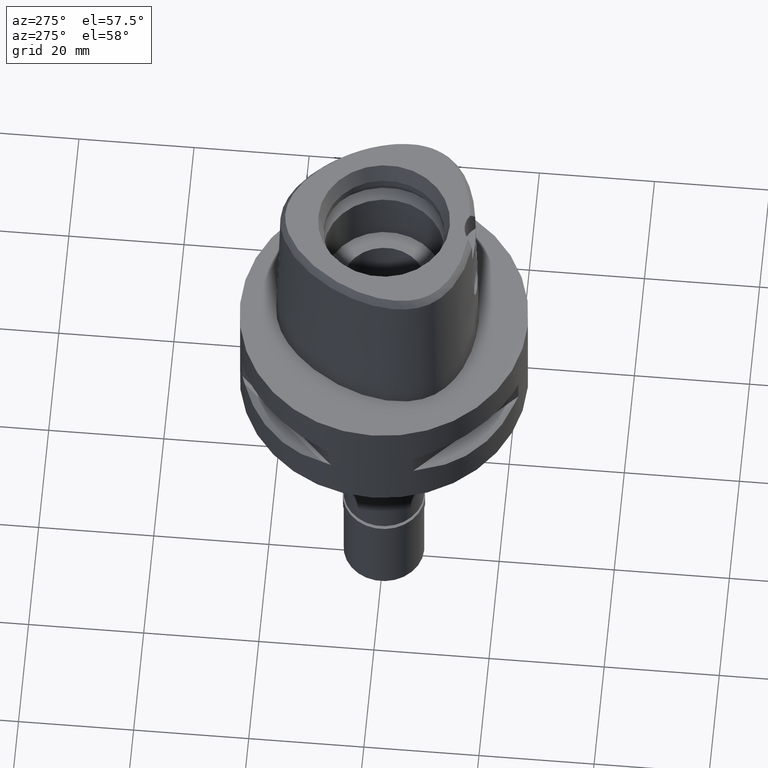
[diagram: clean part render]
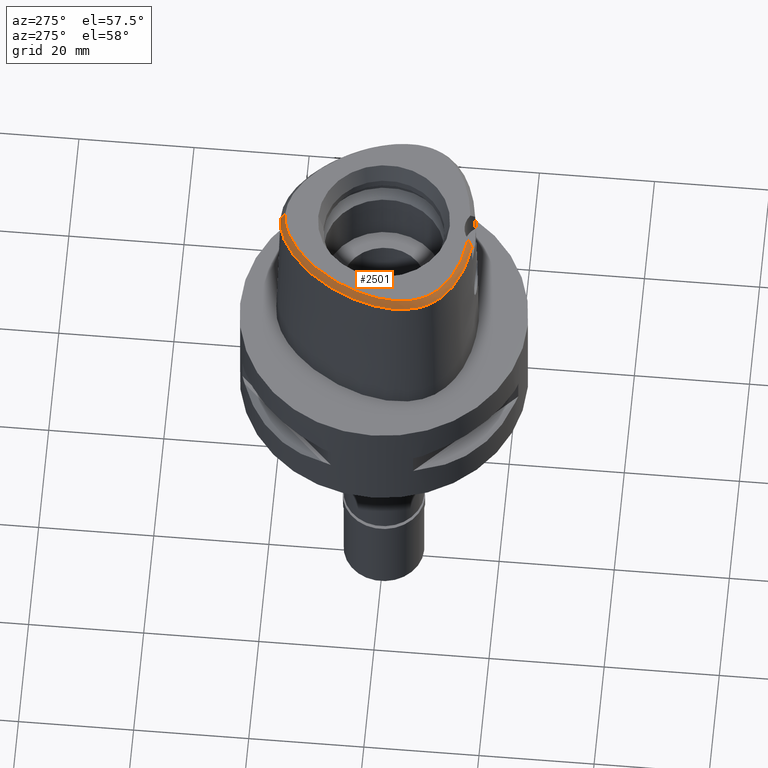
[diagram: same view with one face highlighted and labeled with its STEP entity id]
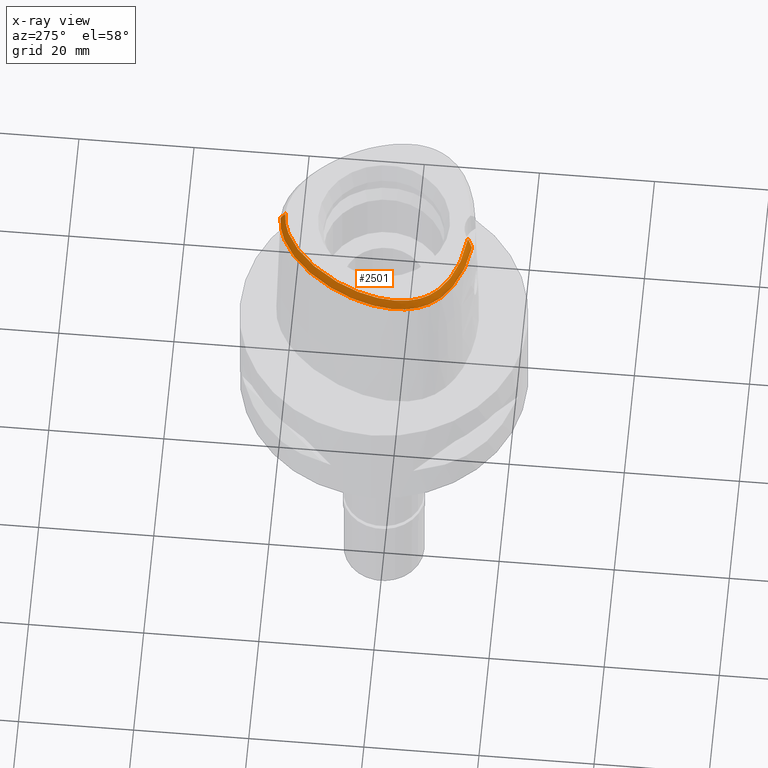
[diagram: x-ray of the same camera — body ghosted, the highlighted face saturated]
A machine part, auxiliary view. The second image highlights one B-rep face of the part: STEP entity #2501.
The next image is the same camera in x-ray: the body ghosted, the highlighted face saturated — about 0% of this face is hidden behind the body in this view.
In plain terms, the highlighted face is a freeform B-spline surface patch.
Its self-contained STEP definition (entity closure, byte-faithful):
#56 = CARTESIAN_POINT ( 'NONE',  ( -2.079945517364000018, -14.76025609020000040, 30.12933893417999798 ) ) ;
#62 = CARTESIAN_POINT ( 'NONE',  ( -6.187456709968000013, 15.30378517703000085, 29.54999834022000371 ) ) ;
#64 = CARTESIAN_POINT ( 'NONE',  ( -12.04571048960038659, -11.59259605427430273, 30.00000000000306954 ) ) ;
#80 = CARTESIAN_POINT ( 'NONE',  ( -8.062879144460998404, -14.57173909518000166, 28.39131700825999971 ) ) ;
#86 = CARTESIAN_POINT ( 'NONE',  ( 0.4952307376230999925, 17.71677170343000185, 28.97065533124999703 ) ) ;
#107 = CARTESIAN_POINT ( 'NONE',  ( -3.191080627774999900, -15.30841913480000116, 28.97065593673999828 ) ) ;
#110 = CARTESIAN_POINT ( 'NONE',  ( -0.04067233802848999741, 17.08601230993000186, 30.12933898580000047 ) ) ;
#123 = CARTESIAN_POINT ( 'NONE',  ( -11.92713521269492283, 9.060544494662932991, 29.99999999999736744 ) ) ;
#135 = CARTESIAN_POINT ( 'NONE',  ( -4.126571935020999504, 17.16469561551999945, 28.39131473941999673 ) ) ;
#147 = CARTESIAN_POINT ( 'NONE',  ( -8.556928701964659822, 13.07433695898526693, 30.00000000000046185 ) ) ;
#159 = CARTESIAN_POINT ( 'NONE',  ( -16.61469463490999843, -1.596364904514999905, 28.97065518721999666 ) ) ;
#161 = CARTESIAN_POINT ( 'NONE',  ( -13.66338899148929187, -10.18351204678886290, 29.99999999999923617 ) ) ;
#183 = CARTESIAN_POINT ( 'NONE',  ( -16.36483838342999775, -2.618501849201000375, 29.54999726452999909 ) ) ;
#184 = CARTESIAN_POINT ( 'NONE',  ( -14.26907056455178591, -10.79012254419424899, 28.52071192347005280 ) ) ;
#207 = CARTESIAN_POINT ( 'NONE',  ( -16.05293619772000113, -3.534758618674999742, 30.12933898812000066 ) ) ;
#236 = CARTESIAN_POINT ( 'NONE',  ( -9.178924021223000551, 13.72716690328000055, 28.39131637512999973 ) ) ;
#237 = CARTESIAN_POINT ( 'NONE',  ( -7.523733151595282997, 15.26501052509523326, 28.52071192347005280 ) ) ;
#254 = CARTESIAN_POINT ( 'NONE',  ( -15.95265548748000128, 1.811410582244999956, 28.97065776782000057 ) ) ;
#255 = CARTESIAN_POINT ( 'NONE',  ( -13.06460239552742308, -11.91950051571652125, 28.52071192347005280 ) ) ;
#272 = VERTEX_POINT ( 'NONE', #2993 ) ;
#281 = CARTESIAN_POINT ( 'NONE',  ( -15.26566713823000043, -8.365641472955001490, 29.54999717351999777 ) ) ;
#282 = CARTESIAN_POINT ( 'NONE',  ( -13.75951393052746496, 7.944084103042573730, 28.52071192347005280 ) ) ;
#283 = DIRECTION ( 'NONE',  ( -2.026170529251034668E-11, -0.4887572537803078765, 0.8724198226067148010 ) ) ;
#312 = CARTESIAN_POINT ( 'NONE',  ( -16.98463338979999904, -4.446094558498999483, 28.39131479093999744 ) ) ;
#334 = CARTESIAN_POINT ( 'NONE',  ( -16.70239734405999954, -3.544778011541000140, 28.97065569047000011 ) ) ;
#353 = CARTESIAN_POINT ( 'NONE',  ( -13.80437769679000048, -11.31670849274000012, 28.39131366040000160 ) ) ;
#372 = VERTEX_POINT ( 'NONE', #3068 ) ;
#382 = CARTESIAN_POINT ( 'NONE',  ( -15.25597616872000017, -9.045164448268000257, 28.97065561519999832 ) ) ;
#408 = CARTESIAN_POINT ( 'NONE',  ( -7.014883569763000537, 14.71655303849999896, 29.54999710032999971 ) ) ;
#409 = CARTESIAN_POINT ( 'NONE',  ( -2.406542353497000075, -14.80491723099000012, 30.00000000000000000 ) ) ;
#427 = CARTESIAN_POINT ( 'NONE',  ( -9.719401339842001164, -12.86245692373999816, 30.12933902817000131 ) ) ;
#463 = CARTESIAN_POINT ( 'NONE',  ( 0.3144436683223000295, 17.40110467407000172, 29.54999727835999934 ) ) ;
#466 = CARTESIAN_POINT ( 'NONE',  ( -10.60021164902527957, -12.49731984708702370, 29.99999999999084821 ) ) ;
#476 = CARTESIAN_POINT ( 'NONE',  ( -10.27907733181908512, 11.24278573582384944, 29.99999999999005595 ) ) ;
#483 = CARTESIAN_POINT ( 'NONE',  ( -2.456142536420000244, -15.70658392389999847, 28.39131470322999817 ) ) ;
#488 = CARTESIAN_POINT ( 'NONE',  ( -1.285080983495000106, 17.97187024245999964, 28.39131352361000182 ) ) ;
#507 = EDGE_CURVE ( 'NONE', #3712, #532, #598, .T. ) ;
#509 = CARTESIAN_POINT ( 'NONE',  ( -0.5855389863231000858, 17.39182595605999992, 29.54999721224000098 ) ) ;
#523 = CARTESIAN_POINT ( 'NONE',  ( -0.5679008307149101542, 17.14013367087451556, 29.99999999999934985 ) ) ;
#532 = VERTEX_POINT ( 'NONE', #2055 ) ;
#537 = CARTESIAN_POINT ( 'NONE',  ( -15.96872935117999859, -1.664054894316999933, 30.12933905135000145 ) ) ;
#561 = CARTESIAN_POINT ( 'NONE',  ( -8.954922691473001350, 13.49206099316000085, 28.97065718359000286 ) ) ;
#564 = CARTESIAN_POINT ( 'NONE',  ( -15.87300767660384793, -5.872112237378931177, 30.00000000000066436 ) ) ;
#565 = LINE ( 'NONE', #1689, #4586 ) ;
#583 = CARTESIAN_POINT ( 'NONE',  ( -15.25970517872000087, 2.948599182799999774, 29.54999727463000170 ) ) ;
#598 = B_SPLINE_CURVE_WITH_KNOTS ( 'NONE', 3,
 ( #1280, #2101, #3198, #2499, #1713, #255, #184, #1340, #4742, #2402, #1388, #943, #1787, #2796, #4327, #282, #3593, #237, #989, #1742, #4378, #2843 ),
 .UNSPECIFIED., .F., .F.,
 ( 4, 1, 1, 1, 1, 1, 1, 1, 1, 1, 1, 1, 1, 1, 1, 1, 1, 1, 1, 4 ),
 ( 0.0000000000000000000, 0.03108635432775441743, 0.1191694130250679773, 0.1632109423736190223, 0.2072524717223813984, 0.2512940010710381644, 0.2733147657453666168, 0.2953355304195892095, 0.3173562950940232996, 0.3393770597682460033, 0.3834185891170084903, 0.4274601184655595354, 0.4715016478142163292, 0.5595847065115299168, 0.6476677652088432824, 0.7357508239061568700, 0.8238338826033646534, 0.9119169413007310876, 0.9559584706493772233, 1.000000000000000000 ),
 .UNSPECIFIED. ) ;
#608 = CARTESIAN_POINT ( 'NONE',  ( -13.45929895405000032, 8.334032602907999632, 28.39131381031000245 ) ) ;
#631 = CARTESIAN_POINT ( 'NONE',  ( -15.64007475516999968, 1.723421431546000138, 29.54999824745999959 ) ) ;
#654 = CARTESIAN_POINT ( 'NONE',  ( -16.75586695602000020, -6.056368517675000618, 28.39131360599999709 ) ) ;
#676 = CARTESIAN_POINT ( 'NONE',  ( -16.33702360534000064, -4.395839951402000345, 29.54999754889999863 ) ) ;
#701 = CARTESIAN_POINT ( 'NONE',  ( -10.56558581236000016, -12.43361854549000078, 30.12933901367000189 ) ) ;
#721 = CARTESIAN_POINT ( 'NONE',  ( -16.24927158191999865, -5.189260749316000343, 29.54999729442999978 ) ) ;
#743 = CARTESIAN_POINT ( 'NONE',  ( -13.36125658655000059, -10.84170792763000080, 29.54999723265000000 ) ) ;
#792 = CARTESIAN_POINT ( 'NONE',  ( -7.856780787036998781, -13.95583240576000073, 29.54999816915999844 ) ) ;
#797 = CARTESIAN_POINT ( 'NONE',  ( -1.150107070882000038, 17.00680459434000014, 30.12933902977000145 ) ) ;
#799 = CARTESIAN_POINT ( 'NONE',  ( -9.750168658358797202, -12.92810664733774395, 29.99999999999974065 ) ) ;
#818 = CARTESIAN_POINT ( 'NONE',  ( -0.6309543540634999781, 18.03989245089999827, 28.39131358746000089 ) ) ;
#844 = CARTESIAN_POINT ( 'NONE',  ( -6.716817607405000778, -14.30321382752000048, 29.54999836600000052 ) ) ;
#850 = CARTESIAN_POINT ( 'NONE',  ( 0.3264291513700999792, 17.72550193113999839, 28.97065555109000101 ) ) ;
#861 = CARTESIAN_POINT ( 'NONE',  ( -6.301949014319000032E-11, 17.15328888647999861, 30.00000000000000000 ) ) ;
#867 = CARTESIAN_POINT ( 'NONE',  ( -9.023949897772000739, -13.87263361849000098, 28.97065554743000249 ) ) ;
#871 = CARTESIAN_POINT ( 'NONE',  ( -6.548153273811999853, 15.84393808220000288, 28.39131761979000146 ) ) ;
#890 = CARTESIAN_POINT ( 'NONE',  ( -14.95238416923000102, 2.843721163697999543, 30.12933900671000131 ) ) ;
#902 = CARTESIAN_POINT ( 'NONE',  ( -6.862723739079807928, 14.51536572208420672, 30.00000000000309441 ) ) ;
#915 = CARTESIAN_POINT ( 'NONE',  ( -15.83068895642000129, -0.6279681332369000391, 30.12933892226999788 ) ) ;
#918 = CARTESIAN_POINT ( 'NONE',  ( -16.12543283909113256, -3.535877041748430649, 29.99999999999853983 ) ) ;
#942 = CARTESIAN_POINT ( 'NONE',  ( -13.60712712011000036, 6.754059460247000324, 29.54999737409000105 ) ) ;
#943 = CARTESIAN_POINT ( 'NONE',  ( -16.85489160761262184, -5.354527567564943524, 28.52071192347005280 ) ) ;
#965 = CARTESIAN_POINT ( 'NONE',  ( -12.90266119977999892, 7.999495185384000173, 29.54999727458000081 ) ) ;
#966 = B_SPLINE_CURVE_WITH_KNOTS ( 'NONE', 3,
 ( #409, #2281, #1905, #4529 ),
 .UNSPECIFIED., .F., .F.,
 ( 4, 4 ),
 ( 0.0000000000000000000, 1.000000000000000000 ),
 .UNSPECIFIED. ) ;
#988 = CARTESIAN_POINT ( 'NONE',  ( -11.06115077830000004, 10.14747851883999985, 30.12933894825999914 ) ) ;
#989 = CARTESIAN_POINT ( 'NONE',  ( -4.422474562381206731, 17.08283562090321084, 28.52071192347005280 ) ) ;
#1016 = CARTESIAN_POINT ( 'NONE',  ( -14.97706988702999986, -8.216552483196000622, 30.12933903577000194 ) ) ;
#1038 = CARTESIAN_POINT ( 'NONE',  ( -15.92770133631999840, -5.143653076787000344, 30.12933900101999996 ) ) ;
#1060 = CARTESIAN_POINT ( 'NONE',  ( -14.91678025573999911, -9.560674617730001046, 28.97065546127999980 ) ) ;
#1085 = CARTESIAN_POINT ( 'NONE',  ( -16.66082849757000162, -4.420967254950999958, 28.97065616991999804 ) ) ;
#1106 = CARTESIAN_POINT ( 'NONE',  ( -16.89241207314000093, -5.280476094373000251, 28.39131388124000210 ) ) ;
#1164 = CARTESIAN_POINT ( 'NONE',  ( -1.958285495965999656, 17.85462106361000068, 28.39131412561999923 ) ) ;
#1198 = CARTESIAN_POINT ( 'NONE',  ( -1.772880577021968218, 16.97196055715992102, 29.99999999999775824 ) ) ;
#1203 = CARTESIAN_POINT ( 'NONE',  ( -2.369477536655999916, -14.73670693372999985, 30.12933893493000070 ) ) ;
#1207 = CARTESIAN_POINT ( 'NONE',  ( -5.712711774408999688, 16.36517673435999853, 28.39132014003999771 ) ) ;
#1218 = EDGE_CURVE ( 'NONE', #532, #372, #565, .T. ) ;
#1220 = CARTESIAN_POINT ( 'NONE',  ( -6.047371482395221598, 15.09400374235290343, 30.00000000000095213 ) ) ;
#1229 = CARTESIAN_POINT ( 'NONE',  ( -6.888235422691000309, -14.92964498533000040, 28.39131771194000109 ) ) ;
#1234 = CARTESIAN_POINT ( 'NONE',  ( -3.053017631463999848, 16.53734507408000098, 30.12933908849000275 ) ) ;
#1257 = CARTESIAN_POINT ( 'NONE',  ( -1.757973948115000073, 16.90099430289000182, 30.12933898137000099 ) ) ;
#1267 = CARTESIAN_POINT ( 'NONE',  ( -14.55898035934198909, 4.112421202110860818, 29.99999999999583622 ) ) ;
#1279 = CARTESIAN_POINT ( 'NONE',  ( -8.506920031974001262, 13.02184917293000055, 30.12933880050999846 ) ) ;
#1280 = CARTESIAN_POINT ( 'NONE',  ( -3.168920966622999824, -15.55911077538999976, 28.52071192346999950 ) ) ;
#1282 = CARTESIAN_POINT ( 'NONE',  ( -14.44611813752641893, -9.226676124712433591, 29.99999999998939160 ) ) ;
#1311 = CARTESIAN_POINT ( 'NONE',  ( -17.01369348652999847, -2.589134407911000135, 28.39131377437000125 ) ) ;
#1339 = CARTESIAN_POINT ( 'NONE',  ( -15.56702618821999984, 3.053477201902999649, 28.97065554255000208 ) ) ;
#1340 = CARTESIAN_POINT ( 'NONE',  ( -15.07117015427603413, -9.793013966486137534, 28.52071192347005280 ) ) ;
#1362 = CARTESIAN_POINT ( 'NONE',  ( -11.83856738222999816, 10.73450735840000014, 28.39131453743000222 ) ) ;
#1387 = CARTESIAN_POINT ( 'NONE',  ( -15.18168109123999976, -9.748657623861999966, 28.39131368345999817 ) ) ;
#1388 = CARTESIAN_POINT ( 'NONE',  ( -16.47905549557314941, -6.962316292880237789, 28.52071192347005280 ) ) ;
#1396 = CARTESIAN_POINT ( 'NONE',  ( -3.168920966622999824, -15.55911077538999976, 28.52071192346999950 ) ) ;
#1413 = ORIENTED_EDGE ( 'NONE', *, *, #4248, .F. ) ;
#1414 = CARTESIAN_POINT ( 'NONE',  ( -11.49729768999999990, -12.26449584118000047, 29.54999744338000056 ) ) ;
#1437 = CARTESIAN_POINT ( 'NONE',  ( -15.55426438942000011, -8.514730462713000492, 28.97065531125999982 ) ) ;
#1461 = CARTESIAN_POINT ( 'NONE',  ( -12.38169571309000005, -12.06175123913999947, 28.97065605088000240 ) ) ;
#1489 = CARTESIAN_POINT ( 'NONE',  ( -16.43791978432000178, -5.990011664941000014, 28.97065541171999925 ) ) ;
#1517 = ORIENTED_EDGE ( 'NONE', *, *, #507, .F. ) ;
#1538 = CARTESIAN_POINT ( 'NONE',  ( -9.857215848043999529, -13.15651844120000113, 29.54999719995999641 ) ) ;
#1544 = CARTESIAN_POINT ( 'NONE',  ( -7.210776916382999779, 14.97556526619000117, 28.97065514384999929 ) ) ;
#1565 = CARTESIAN_POINT ( 'NONE',  ( -2.155902453569999988, -15.73100360134000297, 28.39131471255999983 ) ) ;
#1570 = CARTESIAN_POINT ( 'NONE',  ( -6.367804991889999933, 15.57386162961000053, 28.97065798000999592 ) ) ;
#1572 = CARTESIAN_POINT ( 'NONE',  ( -12.65209017756193965, -11.12734424253546450, 29.99999999999976552 ) ) ;
#1581 = CARTESIAN_POINT ( 'NONE',  ( -13.38439869301878282, 6.635703175839537948, 29.99999999999813127 ) ) ;
#1586 = CARTESIAN_POINT ( 'NONE',  ( -9.995030356246999759, -13.45057995865999878, 28.97065537175999950 ) ) ;
#1589 = CARTESIAN_POINT ( 'NONE',  ( -0.6082466701933000319, 17.71585920348000087, 28.97065539984999916 ) ) ;
#1602 = CARTESIAN_POINT ( 'NONE',  ( -15.02099409651022555, 2.867135356160181114, 30.00000000000077094 ) ) ;
#1608 = CARTESIAN_POINT ( 'NONE',  ( -6.631108699762000569, -13.98999824861000008, 30.12933869303000023 ) ) ;
#1612 = CARTESIAN_POINT ( 'NONE',  ( -3.161237996535999795, 16.84358064135999911, 29.54999699010000214 ) ) ;
#1643 = CARTESIAN_POINT ( 'NONE',  ( -4.904769012775999748, 16.80335057319999947, 28.39131887845999813 ) ) ;
#1654 = CARTESIAN_POINT ( 'NONE',  ( -4.498660734198344002, 15.99814720005820767, 29.99999999999869971 ) ) ;
#1665 = CARTESIAN_POINT ( 'NONE',  ( -11.32028964627000001, 10.34315479868999965, 29.54999747797999987 ) ) ;
#1667 = CARTESIAN_POINT ( 'NONE',  ( -15.29229544369668758, -7.721097396977326888, 29.99999999998976108 ) ) ;
#1686 = CARTESIAN_POINT ( 'NONE',  ( -8.285007993609001531, 14.53089917325999991, 28.39131434379000041 ) ) ;
#1689 = CARTESIAN_POINT ( 'NONE',  ( -2.866356467587000151E-11, 17.98202997909999823, 28.52071728569000086 ) ) ;
#1712 = CARTESIAN_POINT ( 'NONE',  ( -9.604637704253999431, 12.37852618135000071, 29.54999777164999841 ) ) ;
#1713 = CARTESIAN_POINT ( 'NONE',  ( -11.33338053121734568, -13.08225253590195436, 28.52071192347005280 ) ) ;
#1741 = CARTESIAN_POINT ( 'NONE',  ( -14.79296600360999925, 4.206593906266999916, 29.54999722228000181 ) ) ;
#1742 = CARTESIAN_POINT ( 'NONE',  ( -1.893775706186628049, 17.84807082154121716, 28.52071192347005280 ) ) ;
#1758 = CARTESIAN_POINT ( 'NONE',  ( -10.22364143160999994, 11.19607002638000104, 30.12933904878000391 ) ) ;
#1786 = CARTESIAN_POINT ( 'NONE',  ( -13.58281714166999876, -11.07920821018000090, 28.97065544651999858 ) ) ;
#1787 = CARTESIAN_POINT ( 'NONE',  ( -16.99625270562911084, -3.273868231552331753, 28.52071192347005280 ) ) ;
#1813 = CARTESIAN_POINT ( 'NONE',  ( -15.95367651219000216, -6.604056725841999764, 29.54999724595000288 ) ) ;
#1834 = CARTESIAN_POINT ( 'NONE',  ( -15.53331124212999903, -9.214287122240000016, 28.39131392400999943 ) ) ;
#1853 = CARTESIAN_POINT ( 'NONE',  ( -16.57942697131000287, -6.778509396191999770, 28.39131370796999931 ) ) ;
#1879 = CARTESIAN_POINT ( 'NONE',  ( -14.77852702184000044, -10.27808571997000087, 28.39131431807000183 ) ) ;
#1901 = CARTESIAN_POINT ( 'NONE',  ( -9.144374591708000821, -14.17422531543000019, 28.39131381810000221 ) ) ;
#1904 = CARTESIAN_POINT ( 'NONE',  ( -5.385105150339999369, 15.80431596828000096, 29.54999904522000165 ) ) ;
#1905 = CARTESIAN_POINT ( 'NONE',  ( -2.935844350031931338, -15.25651563099012442, 29.10537812850959227 ) ) ;
#1921 = CARTESIAN_POINT ( 'NONE',  ( -3.114756859821999679, -14.66365231386000190, 30.12933895717999988 ) ) ;
#1926 = CARTESIAN_POINT ( 'NONE',  ( 0.4594406443951999930, 17.06865887657000158, 30.12933903325000173 ) ) ;
#1942 = CARTESIAN_POINT ( 'NONE',  ( -14.01158736113475989, 5.375902008631216589, 29.99999999999225508 ) ) ;
#1957 = CARTESIAN_POINT ( 'NONE',  ( -2.479902146202999980, 17.05879781480000190, 29.54999721999000073 ) ) ;
#1960 = CARTESIAN_POINT ( 'NONE',  ( -6.650243356160530084, -14.05992414833179183, 30.00000000000051514 ) ) ;
#1971 = CARTESIAN_POINT ( 'NONE',  ( -16.11283982316178154, -2.629907404753797806, 29.99999999999849010 ) ) ;
#1983 = CARTESIAN_POINT ( 'NONE',  ( -1.824744464065000127, 17.21886988980000055, 29.54999736277999745 ) ) ;
#2002 = CARTESIAN_POINT ( 'NONE',  ( -3.269458361608000185, 17.14981620864000078, 28.97065489169999708 ) ) ;
#2031 = CARTESIAN_POINT ( 'NONE',  ( -11.86705135526000099, 9.019983139496000391, 30.12933890648000101 ) ) ;
#2054 = CARTESIAN_POINT ( 'NONE',  ( -15.93600836193000170, 0.5444799495746999174, 29.54999837078000269 ) ) ;
#2055 = CARTESIAN_POINT ( 'NONE',  ( -2.866356467587000151E-11, 17.98202997909999823, 28.52071728569000086 ) ) ;
#2057 = CARTESIAN_POINT ( 'NONE',  ( -16.08550869466934330, -4.376322360226213348, 30.00000000000092726 ) ) ;
#2077 = CARTESIAN_POINT ( 'NONE',  ( -16.25299181263000037, 0.6150088963461999292, 28.97065804991999727 ) ) ;
#2100 = CARTESIAN_POINT ( 'NONE',  ( -14.82899453719999983, 5.756466548847000375, 28.39131478894999816 ) ) ;
#2101 = CARTESIAN_POINT ( 'NONE',  ( -3.738627773283101696, -15.49270868799859358, 28.52071192347005280 ) ) ;
#2118 = CARTESIAN_POINT ( 'NONE',  ( -10.07785014245999911, 12.82334165794000036, 28.39131558726000293 ) ) ;
#2140 = CARTESIAN_POINT ( 'NONE',  ( -11.32505422365000136, -11.98916115752999900, 30.12933895820000174 ) ) ;
#2163 = CARTESIAN_POINT ( 'NONE',  ( -15.44785516912999945, -7.126724623227000066, 30.12933898612999783 ) ) ;
#2186 = CARTESIAN_POINT ( 'NONE',  ( -10.72068358756999906, -12.71895259391000188, 29.54999725037000147 ) ) ;
#2193 = B_SPLINE_SURFACE_WITH_KNOTS ( 'NONE', 3, 3, ( 
 ( #1926, #3446, #86, #4622 ),
 ( #3390, #463, #850, #4135 ),
 ( #110, #2331, #3864, #3843 ),
 ( #2670, #509, #1589, #818 ),
 ( #797, #3491, #4528, #488 ),
 ( #1257, #1983, #4178, #1164 ),
 ( #2259, #1957, #2693, #3468 ),
 ( #1234, #1612, #2002, #3093 ),
 ( #2716, #3416, #3069, #135 ),
 ( #3784, #4574, #3813, #1643 ),
 ( #3122, #1904, #4230, #1207 ),
 ( #2647, #62, #1570, #871 ),
 ( #2353, #408, #1544, #4156 ),
 ( #3048, #4550, #2450, #1686 ),
 ( #1279, #3221, #561, #236 ),
 ( #4669, #1712, #4721, #2118 ),
 ( #1758, #3916, #2401, #3964 ),
 ( #988, #1665, #2822, #1362 ),
 ( #2031, #3938, #4326, #2736 ),
 ( #3592, #965, #2477, #608 ),
 ( #3197, #942, #2760, #2842 ),
 ( #4274, #3613, #3142, #2100 ),
 ( #3239, #1741, #2795, #4643 ),
 ( #890, #583, #1339, #4349 ),
 ( #3994, #631, #254, #4741 ),
 ( #4250, #2054, #2077, #2373 ),
 ( #915, #3564, #2426, #3888 ),
 ( #537, #3519, #159, #4303 ),
 ( #3543, #183, #3169, #1311 ),
 ( #207, #4696, #334, #2592 ),
 ( #4419, #676, #1085, #312 ),
 ( #1038, #721, #4377, #1106 ),
 ( #4034, #2229, #1489, #654 ),
 ( #2569, #1813, #2205, #1853 ),
 ( #2163, #4085, #4104, #3662 ),
 ( #3636, #3710, #2939, #3294 ),
 ( #1016, #281, #1437, #2968 ),
 ( #2498, #4793, #382, #1834 ),
 ( #4014, #4445, #1060, #1387 ),
 ( #3267, #3313, #2916, #1879 ),
 ( #4810, #2545, #4770, #3337 ),
 ( #2893, #743, #1786, #353 ),
 ( #3362, #3687, #3736, #4839 ),
 ( #4468, #4064, #1461, #2867 ),
 ( #2140, #1414, #4398, #2520 ),
 ( #701, #2186, #4151, #2296 ),
 ( #427, #1538, #1586, #3860 ),
 ( #3441, #2643, #867, #1901 ),
 ( #3386, #792, #3017, #80 ),
 ( #1608, #844, #3806, #1229 ),
 ( #3042, #2275, #4569, #3779 ),
 ( #4521, #4200, #2989, #4594 ),
 ( #1921, #2347, #107, #4128 ),
 ( #1203, #3410, #2326, #483 ),
 ( #56, #2687, #2713, #1565 ),
 ( #2256, #3837, #3065, #4547 ) ),
 .UNSPECIFIED., .F., .F., .F.,
 ( 4, 1, 1, 1, 1, 1, 1, 1, 1, 1, 1, 1, 1, 1, 1, 1, 1, 1, 1, 1, 1, 1, 1, 1, 1, 1, 1, 1, 1, 1, 1, 1, 1, 1, 1, 1, 1, 1, 1, 1, 1, 1, 1, 1, 1, 1, 1, 1, 1, 1, 1, 1, 1, 4 ),
 ( 4, 4 ),
 ( -0.01581534407490000141, 0.0000000000000000000, 0.01988866185210999907, 0.03977732370550000202, 0.05966598555888999456, 0.07955464741227999403, 0.09944330926566999351, 0.1193319711189999993, 0.1392206329725000080, 0.1591092948258999995, 0.1789979566792000154, 0.1988866185326000069, 0.2187752803859999984, 0.2386639422393999899, 0.2585526040928000091, 0.2784412659462000006, 0.2983299277995000165, 0.3182185896529999836, 0.3381072515063999750, 0.3579959133596999910, 0.3778845752130999824, 0.3977732370665000294, 0.4176618989199999965, 0.4375505607732999569, 0.4574392226267000039, 0.4773278844800999954, 0.4972165463333999558, 0.5171052081869000894, 0.5369938700402999698, 0.5568825318935999302, 0.5767711937470000327, 0.5966598556004999443, 0.6165485174538000157, 0.6364371793072000072, 0.6563258411605999987, 0.6762145030139999902, 0.6961031648674000927, 0.7159918267207999731, 0.7358804885742000756, 0.7557691504275000360, 0.7756578122808999165, 0.7955464741344000501, 0.8154351359877000105, 0.8353237978411000020, 0.8552124596944999935, 0.8751011215478000649, 0.8949897834012999764, 0.9148784452547000789, 0.9347671071080999594, 0.9546557689613999198, 0.9745444308149000534, 0.9944330926682999339, 1.000000000000000000, 1.006911813929000088 ),
 ( -0.06483949118029999625, 1.064875623922000081 ),
 .UNSPECIFIED. ) ;
#2205 = CARTESIAN_POINT ( 'NONE',  ( -16.26655174174999985, -6.691283061016999767, 28.97065547696000110 ) ) ;
#2229 = CARTESIAN_POINT ( 'NONE',  ( -16.11997261260999892, -5.923654812208000386, 29.54999721743000052 ) ) ;
#2256 = CARTESIAN_POINT ( 'NONE',  ( -1.919079076642000059, -14.77185826614999975, 30.12933893585999812 ) ) ;
#2259 = CARTESIAN_POINT ( 'NONE',  ( -2.392021497651000139, 16.74610897651000130, 30.12933902241000084 ) ) ;
#2275 = CARTESIAN_POINT ( 'NONE',  ( -5.491032491466000032, -14.60364377619000109, 29.54999757702000096 ) ) ;
#2281 = CARTESIAN_POINT ( 'NONE',  ( -2.674237912717231325, -15.00654602989130737, 29.59847415401959125 ) ) ;
#2282 = CARTESIAN_POINT ( 'NONE',  ( -11.36350786442240945, -12.05063008428595772, 29.99999999999426592 ) ) ;
#2296 = CARTESIAN_POINT ( 'NONE',  ( -11.03087913798000130, -13.28962069075000052, 28.39131372377000062 ) ) ;
#2301 = FACE_OUTER_BOUND ( 'NONE', #3763, .T. ) ;
#2319 = CARTESIAN_POINT ( 'NONE',  ( -15.68979199461307061, 0.4896967076515691408, 29.99999999999590372 ) ) ;
#2326 = CARTESIAN_POINT ( 'NONE',  ( -2.427254203164999957, -15.38329159383999922, 28.97065611378999961 ) ) ;
#2331 = CARTESIAN_POINT ( 'NONE',  ( -0.04219364728170000439, 17.41078950885000154, 29.54999734737999617 ) ) ;
#2347 = CARTESIAN_POINT ( 'NONE',  ( -3.152918743798999834, -14.98603572432999975, 29.54999744695999908 ) ) ;
#2353 = CARTESIAN_POINT ( 'NONE',  ( -6.818990223142999518, 14.45754081081000031, 30.12933905681000368 ) ) ;
#2356 = CARTESIAN_POINT ( 'NONE',  ( -2.535517866335988302, -14.79323888261822439, 29.99999999999904077 ) ) ;
#2363 = CARTESIAN_POINT ( 'NONE',  ( -9.420854217684404119, 12.20577134109497486, 29.99999999999504396 ) ) ;
#2373 = CARTESIAN_POINT ( 'NONE',  ( -16.56997526332000348, 0.6855378431177000520, 28.39131772905000162 ) ) ;
#2401 = CARTESIAN_POINT ( 'NONE',  ( -10.72026393187000082, 11.61457269952000004, 28.97065520764000013 ) ) ;
#2402 = CARTESIAN_POINT ( 'NONE',  ( -16.01658395503334376, -8.155509241190134873, 28.52071192347005280 ) ) ;
#2404 = CARTESIAN_POINT ( 'NONE',  ( -15.04149970408309223, -8.249836848500521569, 29.99999999999993605 ) ) ;
#2426 = CARTESIAN_POINT ( 'NONE',  ( -16.47163306572000252, -0.5229796053333000128, 28.97065621451000084 ) ) ;
#2450 = CARTESIAN_POINT ( 'NONE',  ( -8.074558575022999563, 14.28357891691000070, 28.97065588380000278 ) ) ;
#2477 = CARTESIAN_POINT ( 'NONE',  ( -13.18098007691000184, 8.166763894145999458, 28.97065554243999941 ) ) ;
#2498 = CARTESIAN_POINT ( 'NONE',  ( -14.70130602189000157, -8.706919100323000649, 30.12933899757999967 ) ) ;
#2499 = CARTESIAN_POINT ( 'NONE',  ( -8.702202515497454272, -14.36510996956265274, 28.52071192347005280 ) ) ;
#2501 = ADVANCED_FACE ( 'NONE', ( #2301 ), #2193, .F. ) ;
#2520 = CARTESIAN_POINT ( 'NONE',  ( -11.84178462271000143, -12.81516520849000074, 28.39131441372999731 ) ) ;
#2545 = CARTESIAN_POINT ( 'NONE',  ( -13.84737583065999900, -10.35614396995999975, 29.54999725238999986 ) ) ;
#2569 = CARTESIAN_POINT ( 'NONE',  ( -15.64080128263000269, -6.516830390666999762, 30.12933901494000111 ) ) ;
#2592 = CARTESIAN_POINT ( 'NONE',  ( -17.02712791723999786, -3.549787707974999762, 28.39131404164999850 ) ) ;
#2643 = CARTESIAN_POINT ( 'NONE',  ( -8.903525203835998880, -13.57104192155000000, 29.54999727676000276 ) ) ;
#2647 = CARTESIAN_POINT ( 'NONE',  ( -6.007108428045999204, 15.03370872444000028, 30.12933870043999818 ) ) ;
#2670 = CARTESIAN_POINT ( 'NONE',  ( -0.5628313024529999486, 17.06779270863999898, 30.12933902464000013 ) ) ;
#2687 = CARTESIAN_POINT ( 'NONE',  ( -2.105264496099000127, -15.08383859391000215, 29.54999752696999948 ) ) ;
#2693 = CARTESIAN_POINT ( 'NONE',  ( -2.567782794755000264, 17.37148665309999984, 28.97065541758000151 ) ) ;
#2695 = CARTESIAN_POINT ( 'NONE',  ( -2.406542353497000075, -14.80491723099000012, 30.00000000000000000 ) ) ;
#2704 = CARTESIAN_POINT ( 'NONE',  ( -0.1909045559979831996, 17.15328888648182115, 30.00000000000018119 ) ) ;
#2713 = CARTESIAN_POINT ( 'NONE',  ( -2.130583474834999880, -15.40742109763000123, 28.97065611977000188 ) ) ;
#2716 = CARTESIAN_POINT ( 'NONE',  ( -3.743395550206000344, 16.26884650738999838, 30.12933893201000046 ) ) ;
#2736 = CARTESIAN_POINT ( 'NONE',  ( -12.67444319138999909, 9.565036476980999680, 28.39131505705999814 ) ) ;
#2760 = CARTESIAN_POINT ( 'NONE',  ( -13.89387176732999940, 6.906433503657999573, 28.97065577005999870 ) ) ;
#2763 = CARTESIAN_POINT ( 'NONE',  ( -14.76322153899404199, -8.744676018998658762, 29.99999999999952038 ) ) ;
#2795 = CARTESIAN_POINT ( 'NONE',  ( -15.09420339793999943, 4.327833566528000553, 28.97065542281000106 ) ) ;
#2796 = CARTESIAN_POINT ( 'NONE',  ( -16.79165457291478702, -0.3537785057483261442, 28.52071192347005280 ) ) ;
#2822 = CARTESIAN_POINT ( 'NONE',  ( -11.57942851424999908, 10.53883107855000034, 28.97065600771000149 ) ) ;
#2842 = CARTESIAN_POINT ( 'NONE',  ( -14.18061641453999933, 7.058807547068999710, 28.39131416602999991 ) ) ;
#2843 = CARTESIAN_POINT ( 'NONE',  ( -2.866356467587000151E-11, 17.98202997909999823, 28.52071728569000086 ) ) ;
#2867 = CARTESIAN_POINT ( 'NONE',  ( -12.57079690261000060, -12.32580393350000136, 28.39131460490999714 ) ) ;
#2893 = CARTESIAN_POINT ( 'NONE',  ( -13.13969603143000064, -10.60420764508000069, 30.12933901877000054 ) ) ;
#2916 = CARTESIAN_POINT ( 'NONE',  ( -14.52715316954000180, -10.07237294271999950, 28.97065586734000320 ) ) ;
#2939 = CARTESIAN_POINT ( 'NONE',  ( -15.82212474351999809, -7.949906337674998547, 28.97065577094000233 ) ) ;
#2968 = CARTESIAN_POINT ( 'NONE',  ( -15.84286164062000068, -8.663819452471001270, 28.39131344900999920 ) ) ;
#2989 = CARTESIAN_POINT ( 'NONE',  ( -4.241460539861000356, -15.16890539195999921, 28.97065518140000151 ) ) ;
#2993 = CARTESIAN_POINT ( 'NONE',  ( -2.406542353497000075, -14.80491723099000012, 30.00000000000000000 ) ) ;
#3017 = CARTESIAN_POINT ( 'NONE',  ( -7.959829965748999925, -14.26378575047000119, 28.97065758871000085 ) ) ;
#3026 = CARTESIAN_POINT ( 'NONE',  ( -5.437876102061184547, -14.35707869330859054, 30.00000000000263611 ) ) ;
#3042 = CARTESIAN_POINT ( 'NONE',  ( -5.422597984355999934, -14.28621138271000035, 30.12933891979999856 ) ) ;
#3048 = CARTESIAN_POINT ( 'NONE',  ( -7.653659737851000067, 13.78893840421999961, 30.12933896383000132 ) ) ;
#3051 = CARTESIAN_POINT ( 'NONE',  ( -7.776737509122965797, -13.71663015822122667, 30.00000000000407852 ) ) ;
#3065 = CARTESIAN_POINT ( 'NONE',  ( -1.965766627607000050, -15.41930813257000032, 28.97065610629999810 ) ) ;
#3068 = CARTESIAN_POINT ( 'NONE',  ( -6.301949014319000032E-11, 17.15328888647999861, 30.00000000000000000 ) ) ;
#3069 = CARTESIAN_POINT ( 'NONE',  ( -3.998846473416000524, 16.86607924614000353, 28.97065613694999797 ) ) ;
#3082 = CARTESIAN_POINT ( 'NONE',  ( -5.257871200567610259, 15.58649213537279365, 30.00000000000070344 ) ) ;
#3093 = CARTESIAN_POINT ( 'NONE',  ( -3.377678726679999688, 17.45605177592000246, 28.39131279331000002 ) ) ;
#3122 = CARTESIAN_POINT ( 'NONE',  ( -5.221301838305000054, 15.52388558524000040, 30.12933849781000006 ) ) ;
#3132 = CARTESIAN_POINT ( 'NONE',  ( -7.700642921100591565, 13.84415306341681884, 29.99999999999863576 ) ) ;
#3142 = CARTESIAN_POINT ( 'NONE',  ( -14.53461885829000089, 5.619412522193000470, 28.97065616863999793 ) ) ;
#3145 = CARTESIAN_POINT ( 'NONE',  ( -15.51623783590795291, -7.150856098906022140, 29.99999999999563371 ) ) ;
#3169 = CARTESIAN_POINT ( 'NONE',  ( -16.68926593497999633, -2.603818128556000033, 28.97065551945000195 ) ) ;
#3197 = CARTESIAN_POINT ( 'NONE',  ( -13.32038247288999955, 6.601685416834999209, 30.12933897811999984 ) ) ;
#3198 = CARTESIAN_POINT ( 'NONE',  ( -5.902447850708569810, -15.16907854011898849, 28.52071192347005280 ) ) ;
#3221 = CARTESIAN_POINT ( 'NONE',  ( -8.730921361723998686, 13.25695508305000025, 29.54999799204999889 ) ) ;
#3239 = CARTESIAN_POINT ( 'NONE',  ( -14.49172860928000084, 4.085354246006000167, 30.12933902175000256 ) ) ;
#3267 = CARTESIAN_POINT ( 'NONE',  ( -14.02440546493999918, -9.660947388238000144, 30.12933896588999971 ) ) ;
#3293 = EDGE_CURVE ( 'NONE', #272, #372, #4539, .T. ) ;
#3294 = CARTESIAN_POINT ( 'NONE',  ( -16.12032640190999899, -8.078685938186000115, 28.39131416740999825 ) ) ;
#3313 = CARTESIAN_POINT ( 'NONE',  ( -14.27577931724000138, -9.866660165480999112, 29.54999741662000190 ) ) ;
#3337 = CARTESIAN_POINT ( 'NONE',  ( -14.32111186859000007, -10.80064295515999895, 28.39131373098999944 ) ) ;
#3362 = CARTESIAN_POINT ( 'NONE',  ( -12.60619176004999886, -11.07120982479000126, 30.12933901918000146 ) ) ;
#3385 = ORIENTED_EDGE ( 'NONE', *, *, #1218, .F. ) ;
#3386 = CARTESIAN_POINT ( 'NONE',  ( -7.753731608324000213, -13.64787906105000026, 30.12933874960999958 ) ) ;
#3390 = CARTESIAN_POINT ( 'NONE',  ( 0.3024581852745999999, 17.07670741700000150, 30.12933900563000122 ) ) ;
#3410 = CARTESIAN_POINT ( 'NONE',  ( -2.398365869910999759, -15.05999926378999909, 29.54999752436000193 ) ) ;
#3416 = CARTESIAN_POINT ( 'NONE',  ( -3.871121011811000212, 16.56746287676000051, 29.54999753447999922 ) ) ;
#3441 = CARTESIAN_POINT ( 'NONE',  ( -8.783100509899998798, -13.26945022459999812, 30.12933900609000304 ) ) ;
#3446 = CARTESIAN_POINT ( 'NONE',  ( 0.4773356910091000049, 17.39271528999999816, 29.54999718224999938 ) ) ;
#3468 = CARTESIAN_POINT ( 'NONE',  ( -2.655663443307000104, 17.68417549140000133, 28.39131361516000140 ) ) ;
#3480 = CARTESIAN_POINT ( 'NONE',  ( -12.68647747557120908, 7.869569494475526561, 29.99999999999737099 ) ) ;
#3491 = CARTESIAN_POINT ( 'NONE',  ( -1.195098375086000031, 17.32849314371000204, 29.54999719438000128 ) ) ;
#3507 = CARTESIAN_POINT ( 'NONE',  ( -16.04083576397475852, -1.656498942828992682, 29.99999999999473133 ) ) ;
#3519 = CARTESIAN_POINT ( 'NONE',  ( -16.29171199303999629, -1.630209899415999919, 29.54999711928999773 ) ) ;
#3530 = CARTESIAN_POINT ( 'NONE',  ( -3.771910472264452530, 16.33551310926392830, 29.99999999998960831 ) ) ;
#3543 = CARTESIAN_POINT ( 'NONE',  ( -16.04041083187000183, -2.633185569846999918, 30.12933900961000333 ) ) ;
#3564 = CARTESIAN_POINT ( 'NONE',  ( -16.15116101107000190, -0.5754738692850999149, 29.54999756839000113 ) ) ;
#3592 = CARTESIAN_POINT ( 'NONE',  ( -12.62434232265000134, 7.832226476621000799, 30.12933900672000220 ) ) ;
#3593 = CARTESIAN_POINT ( 'NONE',  ( -10.91764528035567849, 11.98972044748084542, 28.52071192347005280 ) ) ;
#3613 = CARTESIAN_POINT ( 'NONE',  ( -14.24024317938000017, 5.482358495539999765, 29.54999754833999859 ) ) ;
#3636 = CARTESIAN_POINT ( 'NONE',  ( -15.22572142673999807, -7.692347136651999762, 30.12933897799999983 ) ) ;
#3662 = CARTESIAN_POINT ( 'NONE',  ( -16.36676432786000035, -7.450997352851000066, 28.39131406637000055 ) ) ;
#3687 = CARTESIAN_POINT ( 'NONE',  ( -12.81178224182000136, -11.32264990951999906, 29.54999723124000255 ) ) ;
#3710 = CARTESIAN_POINT ( 'NONE',  ( -15.52392308513000074, -7.821126737164001419, 29.54999737446999930 ) ) ;
#3712 = VERTEX_POINT ( 'NONE', #1396 ) ;
#3736 = CARTESIAN_POINT ( 'NONE',  ( -13.01737272360000119, -11.57408999425999951, 28.97065544328999920 ) ) ;
#3763 = EDGE_LOOP ( 'NONE', ( #4485, #3385, #1517, #1413 ) ) ;
#3779 = CARTESIAN_POINT ( 'NONE',  ( -5.627901505685000139, -15.23850856314000168, 28.39131489147000309 ) ) ;
#3784 = CARTESIAN_POINT ( 'NONE',  ( -4.466009467773999653, 15.93340852998000123, 30.12933859924000046 ) ) ;
#3806 = CARTESIAN_POINT ( 'NONE',  ( -6.802526515048000100, -14.61642940643000088, 28.97065803897000080 ) ) ;
#3813 = CARTESIAN_POINT ( 'NONE',  ( -4.758515831108999450, 16.51336989213000095, 28.97065878539000039 ) ) ;
#3816 = CARTESIAN_POINT ( 'NONE',  ( -3.123276563984411336, -14.73562494724896332, 30.00000000000137490 ) ) ;
#3837 = CARTESIAN_POINT ( 'NONE',  ( -1.942422852124999988, -15.09558319936000004, 29.54999752108000166 ) ) ;
#3843 = CARTESIAN_POINT ( 'NONE',  ( -0.04523626578811999754, 18.06034390669000089, 28.39131407054000178 ) ) ;
#3860 = CARTESIAN_POINT ( 'NONE',  ( -10.13284486444999999, -13.74464147612999909, 28.39131354355999903 ) ) ;
#3864 = CARTESIAN_POINT ( 'NONE',  ( -0.04371495653491000444, 17.73556670777000122, 28.97065570895999898 ) ) ;
#3888 = CARTESIAN_POINT ( 'NONE',  ( -16.79210512036000225, -0.4704853413815000551, 28.39131486063000054 ) ) ;
#3890 = CARTESIAN_POINT ( 'NONE',  ( -4.150496093830525979, -14.59917355179894649, 30.00000000000056133 ) ) ;
#3916 = CARTESIAN_POINT ( 'NONE',  ( -10.47195268174000127, 11.40532136294999965, 29.54999712820999846 ) ) ;
#3918 = CARTESIAN_POINT ( 'NONE',  ( -15.71065119879248861, -6.536303815289661756, 29.99999999999054623 ) ) ;
#3938 = CARTESIAN_POINT ( 'NONE',  ( -12.13618196730000065, 9.201667585323999532, 29.54999762333999769 ) ) ;
#3964 = CARTESIAN_POINT ( 'NONE',  ( -10.96857518200000214, 11.82382403608999866, 28.39131328706000090 ) ) ;
#3994 = CARTESIAN_POINT ( 'NONE',  ( -15.32749402285000073, 1.635432280846000008, 30.12933872709999861 ) ) ;
#4014 = CARTESIAN_POINT ( 'NONE',  ( -14.38697858475000046, -9.184708605465999653, 30.12933901691000216 ) ) ;
#4034 = CARTESIAN_POINT ( 'NONE',  ( -15.80202544091000050, -5.857297959473999782, 30.12933902314999912 ) ) ;
#4064 = CARTESIAN_POINT ( 'NONE',  ( -12.19259452357000129, -11.79769854477999935, 29.54999749685999788 ) ) ;
#4085 = CARTESIAN_POINT ( 'NONE',  ( -15.75415822204000094, -7.234815533102000096, 29.54999734620999874 ) ) ;
#4104 = CARTESIAN_POINT ( 'NONE',  ( -16.06046127494999709, -7.342906442976999237, 28.97065570628999964 ) ) ;
#4128 = CARTESIAN_POINT ( 'NONE',  ( -3.229242511752000055, -15.63080254525999990, 28.39131442652000104 ) ) ;
#4135 = CARTESIAN_POINT ( 'NONE',  ( 0.3384146344178000088, 18.04989918820999861, 28.39131382383000357 ) ) ;
#4151 = CARTESIAN_POINT ( 'NONE',  ( -10.87578136276999885, -13.00428664232999942, 28.97065548707000104 ) ) ;
#4156 = CARTESIAN_POINT ( 'NONE',  ( -7.406670263001998933, 15.23457749386999893, 28.39131318737999976 ) ) ;
#4160 = CARTESIAN_POINT ( 'NONE',  ( -8.809985523415296171, -13.33678107331190787, 29.99999999999470290 ) ) ;
#4178 = CARTESIAN_POINT ( 'NONE',  ( -1.891514980014999958, 17.53674547670000194, 28.97065574420000189 ) ) ;
#4200 = CARTESIAN_POINT ( 'NONE',  ( -4.190263392647999297, -14.84824554995000057, 29.54999711673999840 ) ) ;
#4220 = CARTESIAN_POINT ( 'NONE',  ( -2.411640998824980286, 16.81591728051114032, 29.99999999999739941 ) ) ;
#4230 = CARTESIAN_POINT ( 'NONE',  ( -5.548908462374000372, 16.08474635131999975, 28.97065959262999968 ) ) ;
#4248 = EDGE_CURVE ( 'NONE', #272, #3712, #966, .T. ) ;
#4250 = CARTESIAN_POINT ( 'NONE',  ( -15.61902491123999859, 0.4739510028032000166, 30.12933869164999834 ) ) ;
#4260 = CARTESIAN_POINT ( 'NONE',  ( -15.39727819201294423, 1.655076005305240461, 30.00000000000008171 ) ) ;
#4274 = CARTESIAN_POINT ( 'NONE',  ( -13.94586750047000123, 5.345304468886999949, 30.12933892802999836 ) ) ;
#4276 = CARTESIAN_POINT ( 'NONE',  ( -15.99949242929705306, -5.153835065648810776, 30.00000000000128964 ) ) ;
#4303 = CARTESIAN_POINT ( 'NONE',  ( -16.93767727676999968, -1.562519909613999891, 28.39131325514999915 ) ) ;
#4326 = CARTESIAN_POINT ( 'NONE',  ( -12.40531257934999942, 9.383352031152998762, 28.97065634020000147 ) ) ;
#4327 = CARTESIAN_POINT ( 'NONE',  ( -15.84228689413422231, 3.460033471611971834, 28.52071192347005280 ) ) ;
#4349 = CARTESIAN_POINT ( 'NONE',  ( -15.87434719770999791, 3.158355221004999880, 28.39131381047999980 ) ) ;
#4377 = CARTESIAN_POINT ( 'NONE',  ( -16.57084182753000334, -5.234868421845000341, 28.97065558783000228 ) ) ;
#4378 = CARTESIAN_POINT ( 'NONE',  ( -0.6295828121029654056, 17.98203011042085109, 28.52071192347005280 ) ) ;
#4398 = CARTESIAN_POINT ( 'NONE',  ( -11.66954115635000022, -12.53983052482999838, 28.97065592854999849 ) ) ;
#4419 = CARTESIAN_POINT ( 'NONE',  ( -16.01321871310999612, -4.370712647853999044, 30.12933892787999923 ) ) ;
#4445 = CARTESIAN_POINT ( 'NONE',  ( -14.65187942024999934, -9.372691611598000350, 29.54999723909000053 ) ) ;
#4468 = CARTESIAN_POINT ( 'NONE',  ( -12.00349333405000074, -11.53364585042000101, 30.12933894284000047 ) ) ;
#4485 = ORIENTED_EDGE ( 'NONE', *, *, #3293, .T. ) ;
#4521 = CARTESIAN_POINT ( 'NONE',  ( -4.139066245435000013, -14.52758570793999837, 30.12933905208999974 ) ) ;
#4528 = CARTESIAN_POINT ( 'NONE',  ( -1.240089679291000113, 17.65018169308999774, 28.97065535898999755 ) ) ;
#4529 = CARTESIAN_POINT ( 'NONE',  ( -3.168920966622999824, -15.55911077538999976, 28.52071192346999950 ) ) ;
#4539 = B_SPLINE_CURVE_WITH_KNOTS ( 'NONE', 3,
 ( #2695, #2356, #3816, #3890, #3026, #1960, #3051, #4160, #799, #466, #2282, #64, #1572, #4552, #161, #4645, #1282, #2763, #2404, #1667, #3145, #3918, #564, #4276, #2057, #918, #1971, #3507, #4653, #2319, #4260, #1602, #1267, #1942, #1581, #3480, #123, #4562, #476, #2363, #147, #3132, #902, #1220, #3082, #1654, #3530, #4587, #4220, #1198, #4633, #523, #2704, #861 ),
 .UNSPECIFIED., .F., .F.,
 ( 4, 1, 1, 1, 1, 1, 1, 1, 1, 1, 1, 1, 1, 1, 1, 1, 1, 1, 1, 1, 1, 1, 1, 1, 1, 1, 1, 1, 1, 1, 1, 1, 1, 1, 1, 1, 1, 1, 1, 1, 1, 1, 1, 1, 1, 1, 1, 1, 1, 1, 1, 4 ),
 ( 0.0000000000000000000, 0.005566907331700066131, 0.02545556918509994659, 0.04534423103860008020, 0.06523289289190004059, 0.08512155474529992105, 0.1050102165987000236, 0.1248988784521999351, 0.1447875403055000065, 0.1646762021588999980, 0.1845648640122999895, 0.2044535258655999499, 0.2243421877191000835, 0.2442308495724999640, 0.2641195114257999244, 0.2840081732792000269, 0.3038968351325999073, 0.3237854969860000098, 0.3436741588394000013, 0.3635628206927999928, 0.3834514825461999843, 0.4033401443995000557, 0.4232288062529999673, 0.4431174681064000698, 0.4630061299597000302, 0.4828947918130999106, 0.5027834536666000442, 0.5226721155199000046, 0.5425607773732999961, 0.5624494392267000986, 0.5823381010799999480, 0.6022267629334999706, 0.6221154247869000731, 0.6420040866403000646, 0.6618927484936000250, 0.6817814103470000164, 0.7016700722005000390, 0.7215587340537999994, 0.7414473959071999909, 0.7613360577605999824, 0.7812247196139999739, 0.8011133814673999654, 0.8210020433207999568, 0.8408907051741000283, 0.8607793670275000197, 0.8806680288810000423, 0.9005566907343299787, 0.9204453525877199782, 0.9403340144411099777, 0.9602226762944999772, 0.9801113381478899766, 1.000000000000000000 ),
 .UNSPECIFIED. ) ;
#4547 = CARTESIAN_POINT ( 'NONE',  ( -1.989110403089999757, -15.74303306578000239, 28.39131469151999809 ) ) ;
#4550 = CARTESIAN_POINT ( 'NONE',  ( -7.864109156437000259, 14.03625866057000060, 29.54999742380999805 ) ) ;
#4552 = CARTESIAN_POINT ( 'NONE',  ( -13.18915979441887565, -10.65722997876878608, 29.99999999999608491 ) ) ;
#4562 = CARTESIAN_POINT ( 'NONE',  ( -11.11900396222782739, 10.19116357425899366, 29.99999999999820588 ) ) ;
#4569 = CARTESIAN_POINT ( 'NONE',  ( -5.559466998576000130, -14.92107616966999828, 28.97065623423999980 ) ) ;
#4574 = CARTESIAN_POINT ( 'NONE',  ( -4.612262649440999951, 16.22338921105999887, 29.54999869230999821 ) ) ;
#4586 = VECTOR ( 'NONE', #283, 1000.000000000000000 ) ;
#4587 = CARTESIAN_POINT ( 'NONE',  ( -3.077178008231387984, 16.60571267457864053, 30.00000000000128964 ) ) ;
#4594 = CARTESIAN_POINT ( 'NONE',  ( -4.292657687074000528, -15.48956523396999962, 28.39131324606000106 ) ) ;
#4622 = CARTESIAN_POINT ( 'NONE',  ( 0.5131257842370000599, 18.04082811685999843, 28.39131348025999912 ) ) ;
#4633 = CARTESIAN_POINT ( 'NONE',  ( -1.160151454488572487, 17.07862209883076687, 29.99999999999663913 ) ) ;
#4643 = CARTESIAN_POINT ( 'NONE',  ( -15.39544079228000051, 4.449073226789000302, 28.39131362334000031 ) ) ;
#4645 = CARTESIAN_POINT ( 'NONE',  ( -14.08052509618497972, -9.706873108417777729, 29.99999999999324274 ) ) ;
#4653 = CARTESIAN_POINT ( 'NONE',  ( -15.90223487643802791, -0.6162487013688002779, 29.99999999999454303 ) ) ;
#4669 = CARTESIAN_POINT ( 'NONE',  ( -9.368031485149000304, 12.15611844304999956, 30.12933886385000193 ) ) ;
#4696 = CARTESIAN_POINT ( 'NONE',  ( -16.37766677088999856, -3.539768315108000163, 29.54999733929999906 ) ) ;
#4721 = CARTESIAN_POINT ( 'NONE',  ( -9.841243923357998469, 12.60093391965000009, 28.97065667944999845 ) ) ;
#4741 = CARTESIAN_POINT ( 'NONE',  ( -16.26523621979999845, 1.899399732945000085, 28.39131728818999889 ) ) ;
#4742 = CARTESIAN_POINT ( 'NONE',  ( -15.58740380353316191, -8.999391780896207393, 28.52071192347005280 ) ) ;
#4770 = CARTESIAN_POINT ( 'NONE',  ( -14.08424384962999909, -10.57839346256000113, 28.97065549168999965 ) ) ;
#4793 = CARTESIAN_POINT ( 'NONE',  ( -14.97864109530999954, -8.876041774295000408, 29.54999730638999722 ) ) ;
#4810 = CARTESIAN_POINT ( 'NONE',  ( -13.61050781169999979, -10.13389447736000015, 30.12933901310000095 ) ) ;
#4839 = CARTESIAN_POINT ( 'NONE',  ( -13.22296320537000014, -11.82553007899999997, 28.39131365534999674 ) ) ;